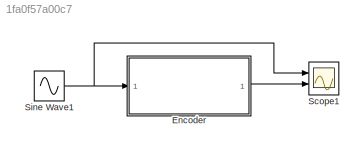
MODEL slx_1fa0f57a00c7
KIND model
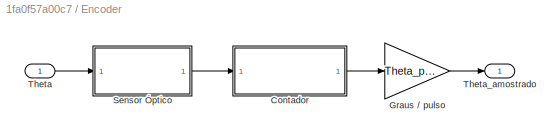
BLOCK [SubSystem] Encoder
  FunctionWithSeparateData = off
  MaskHideContents = off
  MinAlgLoopOccurrences = off
  Opaque = off
  Ports = [1, 1]
  PropExecContextOutsideSubsystem = off
  RTWSystemCode = Auto
  RequestExecContextInheritance = off
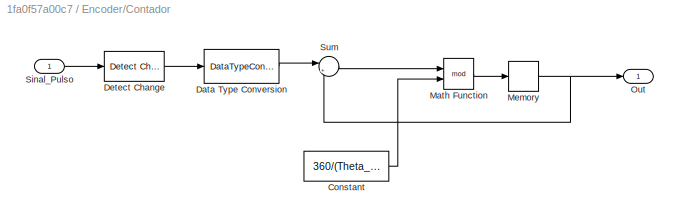
BLOCK [SubSystem] Encoder/Contador
  FunctionWithSeparateData = off
  MaskHideContents = off
  MinAlgLoopOccurrences = off
  Opaque = off
  Ports = [1, 1]
  PropExecContextOutsideSubsystem = off
  RTWSystemCode = Auto
  RequestExecContextInheritance = off
BLOCK [Constant] Encoder/Contador/Constant
  Value = 360/(Theta_p/2)
BLOCK [DataTypeConversion] Encoder/Contador/Data Type Conversion
  OutDataTypeStr = int32
  RndMeth = Floor
  SaturateOnIntegerOverflow = off
BLOCK [Reference] Encoder/Contador/Detect Change  REF=simulink/Logic and Bit
Operations/Detect
Change
  InputProcessing = Inherited
  OutDataTypeStr = boolean
  Ports = [1, 1]
  SourceBlock = simulink/Logic and Bit\nOperations/Detect\nChange
  SourceType = Detect Change
  vinit = 0
BLOCK [Math] Encoder/Contador/Math Function
  Operator = mod
  Ports = [2, 1]
BLOCK [Memory] Encoder/Contador/Memory
BLOCK [Outport] Encoder/Contador/Out
  IconDisplay = Port number
BLOCK [Inport] Encoder/Contador/Sinal_Pulso
  IconDisplay = Port number
BLOCK [Sum] Encoder/Contador/Sum
  IconShape = round
  InputSameDT = off
  Inputs = |++
  OutDataTypeStr = Inherit: Inherit via internal rule
  Ports = [2, 1]
  SaturateOnIntegerOverflow = off
BLOCK [Gain] Encoder/Graus // pulso
  Gain = Theta_p/2
  OutDataTypeStr = Inherit: Inherit via internal rule
  ParamDataTypeStr = Inherit: Inherit via internal rule
  SaturateOnIntegerOverflow = off
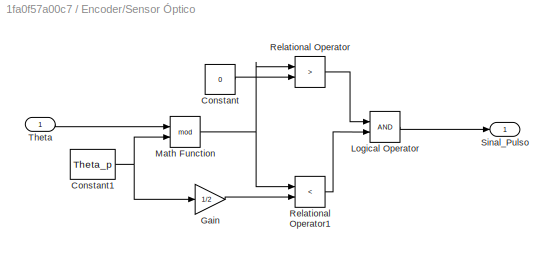
BLOCK [SubSystem] Encoder/Sensor Óptico
  FunctionWithSeparateData = off
  MaskHideContents = off
  MinAlgLoopOccurrences = off
  Opaque = off
  Ports = [1, 1]
  PropExecContextOutsideSubsystem = off
  RTWSystemCode = Auto
  RequestExecContextInheritance = off
BLOCK [Constant] Encoder/Sensor Óptico/Constant
  Value = 0
BLOCK [Constant] Encoder/Sensor Óptico/Constant1
  Value = Theta_p
BLOCK [Gain] Encoder/Sensor Óptico/Gain
  Gain = 1/2
  OutDataTypeStr = Inherit: Inherit via internal rule
  ParamDataTypeStr = Inherit: Inherit via internal rule
  SaturateOnIntegerOverflow = off
BLOCK [Logic] Encoder/Sensor Óptico/Logical Operator
  AllPortsSameDT = off
  OutDataTypeStr = boolean
  Ports = [2, 1]
BLOCK [Math] Encoder/Sensor Óptico/Math Function
  Operator = mod
  Ports = [2, 1]
BLOCK [RelationalOperator] Encoder/Sensor Óptico/Relational Operator
  InputSameDT = off
  Operator = >
  OutDataTypeStr = boolean
  Ports = [2, 1]
BLOCK [RelationalOperator] Encoder/Sensor Óptico/Relational Operator1
  InputSameDT = off
  Operator = <
  OutDataTypeStr = boolean
  Ports = [2, 1]
BLOCK [Outport] Encoder/Sensor Óptico/Sinal_Pulso
  IconDisplay = Port number
BLOCK [Inport] Encoder/Sensor Óptico/Theta
  IconDisplay = Port number
BLOCK [Inport] Encoder/Theta
  IconDisplay = Port number
BLOCK [Outport] Encoder/Theta_amostrado
  IconDisplay = Port number
BLOCK [Scope] Scope1
  DataFormat = StructureWithTime
  Floating = off
  LimitDataPoints = off
  NumInputPorts = 2
  Ports = [2]
  SampleTime = 0
  ShowLegends = off
  YMax = 575~375
  YMin = 150~0
  ZoomMode = yonly
BLOCK [Sin] Sine Wave1
  Amplitude = 360
  Ports = [0, 1]
  SampleTime = 0
LINE Encoder/Contador/Constant:1 -> Encoder/Contador/Math Function:2
LINE Encoder/Contador/Data Type Conversion:1 -> Encoder/Contador/Sum:1
LINE Encoder/Contador/Detect Change:1 -> Encoder/Contador/Data Type Conversion:1
LINE Encoder/Contador/Math Function:1 -> Encoder/Contador/Memory:1
NET Encoder/Contador/Memory:1 -> Encoder/Contador/Out:1, Encoder/Contador/Sum:2
LINE Encoder/Contador/Sinal_Pulso:1 -> Encoder/Contador/Detect Change:1
LINE Encoder/Contador/Sum:1 -> Encoder/Contador/Math Function:1
LINE Encoder/Contador:1 -> Encoder/Graus // pulso:1
LINE Encoder/Graus // pulso:1 -> Encoder/Theta_amostrado:1
NET Encoder/Sensor Óptico/Constant1:1 -> Encoder/Sensor Óptico/Gain:1, Encoder/Sensor Óptico/Math Function:2
LINE Encoder/Sensor Óptico/Constant:1 -> Encoder/Sensor Óptico/Relational Operator:2
LINE Encoder/Sensor Óptico/Gain:1 -> Encoder/Sensor Óptico/Relational Operator1:2
LINE Encoder/Sensor Óptico/Logical Operator:1 -> Encoder/Sensor Óptico/Sinal_Pulso:1
NET Encoder/Sensor Óptico/Math Function:1 -> Encoder/Sensor Óptico/Relational Operator1:1, Encoder/Sensor Óptico/Relational Operator:1
LINE Encoder/Sensor Óptico/Relational Operator1:1 -> Encoder/Sensor Óptico/Logical Operator:2
LINE Encoder/Sensor Óptico/Relational Operator:1 -> Encoder/Sensor Óptico/Logical Operator:1
LINE Encoder/Sensor Óptico/Theta:1 -> Encoder/Sensor Óptico/Math Function:1
LINE Encoder/Sensor Óptico:1 -> Encoder/Contador:1
LINE Encoder/Theta:1 -> Encoder/Sensor Óptico:1
LINE Encoder:1 -> Scope1:2
NET Sine Wave1:1 -> Encoder:1, Scope1:1
note: NET lines group one-source signal fan-out (src -> all destinations, sorted); 1:1 wires keep LINE
